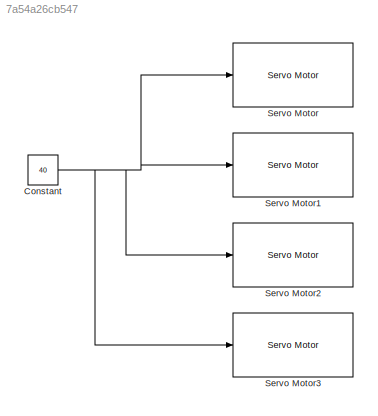
MODEL slx_7a54a26cb547
KIND model
CONFIG AbsTol = auto
CONFIG EnableMultiTasking = on
CONFIG FixedStep = 0.02
CONFIG MaxStep = auto
CONFIG MinStep = auto
CONFIG RelTol = 1e-3
CONFIG SampleTimeConstraint = Unconstrained
CONFIG SolverName = FixedStepAuto
CONFIG StartTime = 0.0
CONFIG StopTime = inf
BLOCK [Constant] Constant
  Value = 40
BLOCK [Reference] Servo Motor  REF=bbblueActuatorLib/Servo Motor
  SourceBlock = bbblueActuatorLib/Servo Motor
  SourceType = beagleboneblue.bbblueServo
BLOCK [Reference] Servo Motor1  REF=bbblueActuatorLib/Servo Motor
  SourceBlock = bbblueActuatorLib/Servo Motor
  SourceType = beagleboneblue.bbblueServo
BLOCK [Reference] Servo Motor2  REF=bbblueActuatorLib/Servo Motor
  SourceBlock = bbblueActuatorLib/Servo Motor
  SourceType = beagleboneblue.bbblueServo
BLOCK [Reference] Servo Motor3  REF=bbblueActuatorLib/Servo Motor
  SourceBlock = bbblueActuatorLib/Servo Motor
  SourceType = beagleboneblue.bbblueServo
NET Constant:1 -> Servo Motor1:1, Servo Motor2:1, Servo Motor3:1, Servo Motor:1
note: NET lines group one-source signal fan-out (src -> all destinations, sorted); 1:1 wires keep LINE
